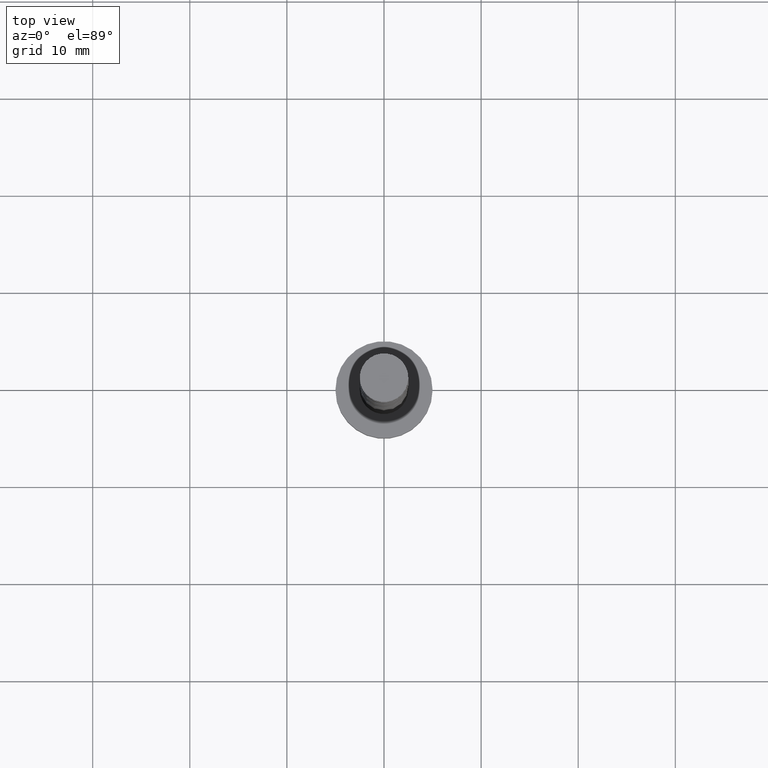
[diagram: clean part render]
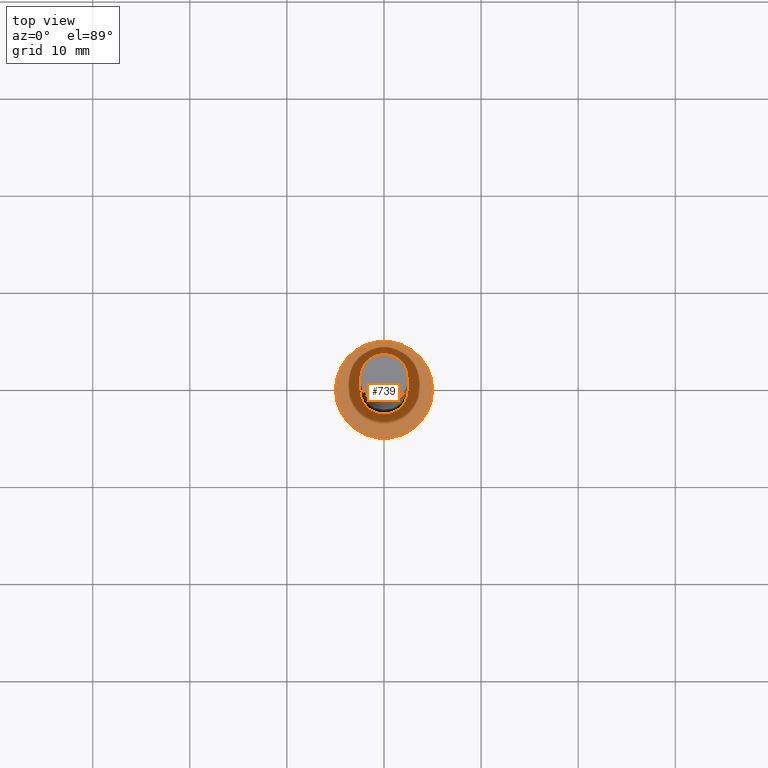
[diagram: same view with one face highlighted and labeled with its STEP entity id]
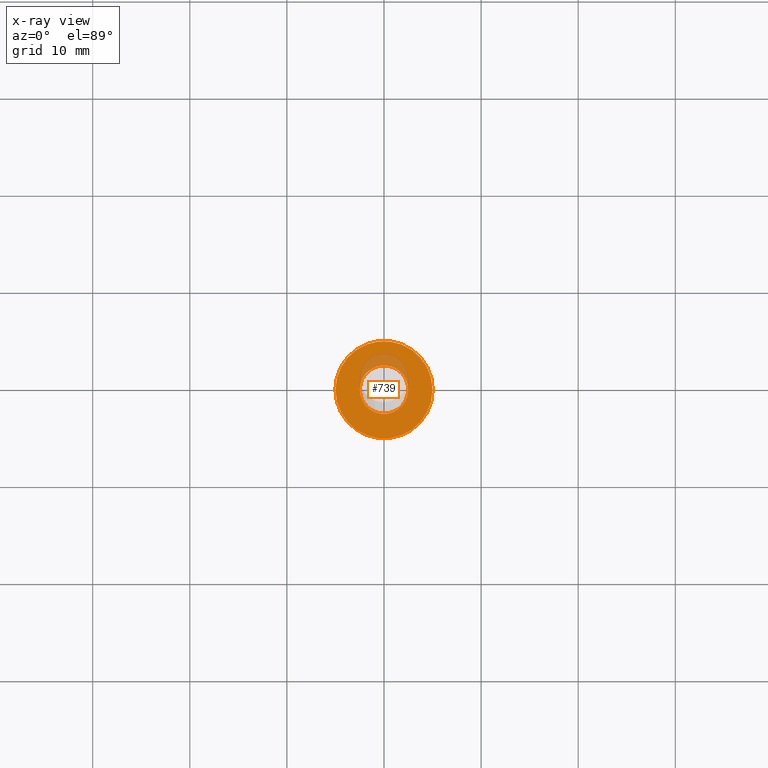
[diagram: x-ray of the same camera — body ghosted, the highlighted face saturated]
A machine part, top view. The second image highlights one B-rep face of the part: STEP entity #739.
The next image is the same camera in x-ray: the body ghosted, the highlighted face saturated — about 11% of this face is hidden behind the body in this view.
In plain terms, the highlighted planar face has unit normal (0, 0, 1).
Its self-contained STEP definition (entity closure, byte-faithful):
#47 = EDGE_LOOP ( 'NONE', ( #396, #781 ) ) ;
#58 = EDGE_CURVE ( 'NONE', #1349, #543, #638, .T. ) ;
#70 = EDGE_CURVE ( 'NONE', #1524, #1382, #835, .T. ) ;
#92 = DIRECTION ( 'NONE',  ( 1.000000000000000000, 0.000000000000000000, 0.000000000000000000 ) ) ;
#106 = AXIS2_PLACEMENT_3D ( 'NONE', #324, #1293, #1073 ) ;
#189 = CARTESIAN_POINT ( 'NONE',  ( 0.000000000000000000, 0.000000000000000000, 3.000000000000000000 ) ) ;
#218 = DIRECTION ( 'NONE',  ( 0.000000000000000000, 0.000000000000000000, 1.000000000000000000 ) ) ;
#324 = CARTESIAN_POINT ( 'NONE',  ( 0.000000000000000000, 0.000000000000000000, 3.000000000000000000 ) ) ;
#365 = ORIENTED_EDGE ( 'NONE', *, *, #70, .T. ) ;
#396 = ORIENTED_EDGE ( 'NONE', *, *, #58, .F. ) ;
#430 = AXIS2_PLACEMENT_3D ( 'NONE', #1308, #584, #92 ) ;
#462 = CARTESIAN_POINT ( 'NONE',  ( -5.000000000000000000, 0.000000000000000000, 3.000000000000000000 ) ) ;
#543 = VERTEX_POINT ( 'NONE', #1026 ) ;
#579 = DIRECTION ( 'NONE',  ( 1.000000000000000000, 0.000000000000000000, 0.000000000000000000 ) ) ;
#584 = DIRECTION ( 'NONE',  ( 0.000000000000000000, 0.000000000000000000, 1.000000000000000000 ) ) ;
#638 = CIRCLE ( 'NONE', #664, 2.500000000000000000 ) ;
#664 = AXIS2_PLACEMENT_3D ( 'NONE', #189, #1445, #805 ) ;
#707 = CARTESIAN_POINT ( 'NONE',  ( 0.000000000000000000, 0.000000000000000000, 3.000000000000000000 ) ) ;
#716 = EDGE_CURVE ( 'NONE', #1382, #1524, #1105, .T. ) ;
#739 = ADVANCED_FACE ( 'NONE', ( #1056, #937 ), #1193, .T. ) ;
#781 = ORIENTED_EDGE ( 'NONE', *, *, #802, .F. ) ;
#802 = EDGE_CURVE ( 'NONE', #543, #1349, #1082, .T. ) ;
#805 = DIRECTION ( 'NONE',  ( 1.000000000000000000, 0.000000000000000000, 0.000000000000000000 ) ) ;
#812 = AXIS2_PLACEMENT_3D ( 'NONE', #707, #942, #579 ) ;
#835 = CIRCLE ( 'NONE', #106, 5.000000000000000000 ) ;
#839 = DIRECTION ( 'NONE',  ( 1.000000000000000000, 0.000000000000000000, -0.000000000000000000 ) ) ;
#937 = FACE_OUTER_BOUND ( 'NONE', #1012, .T. ) ;
#942 = DIRECTION ( 'NONE',  ( 0.000000000000000000, 0.000000000000000000, 1.000000000000000000 ) ) ;
#962 = ORIENTED_EDGE ( 'NONE', *, *, #716, .T. ) ;
#1012 = EDGE_LOOP ( 'NONE', ( #962, #365 ) ) ;
#1026 = CARTESIAN_POINT ( 'NONE',  ( 2.500000000000000000, 3.061616997868383141E-16, 3.000000000000000000 ) ) ;
#1056 = FACE_BOUND ( 'NONE', #47, .T. ) ;
#1073 = DIRECTION ( 'NONE',  ( 1.000000000000000000, 0.000000000000000000, 0.000000000000000000 ) ) ;
#1082 = CIRCLE ( 'NONE', #812, 2.500000000000000000 ) ;
#1105 = CIRCLE ( 'NONE', #430, 5.000000000000000000 ) ;
#1167 = CARTESIAN_POINT ( 'NONE',  ( -2.500000000000000000, 0.000000000000000000, 3.000000000000000000 ) ) ;
#1193 = PLANE ( 'NONE',  #1519 ) ;
#1293 = DIRECTION ( 'NONE',  ( 0.000000000000000000, 0.000000000000000000, 1.000000000000000000 ) ) ;
#1308 = CARTESIAN_POINT ( 'NONE',  ( 0.000000000000000000, 0.000000000000000000, 3.000000000000000000 ) ) ;
#1318 = CARTESIAN_POINT ( 'NONE',  ( 0.000000000000000000, 0.000000000000000000, 3.000000000000000000 ) ) ;
#1349 = VERTEX_POINT ( 'NONE', #1167 ) ;
#1382 = VERTEX_POINT ( 'NONE', #462 ) ;
#1445 = DIRECTION ( 'NONE',  ( 0.000000000000000000, 0.000000000000000000, 1.000000000000000000 ) ) ;
#1471 = CARTESIAN_POINT ( 'NONE',  ( 5.000000000000000000, 6.123233995736766282E-16, 3.000000000000000000 ) ) ;
#1519 = AXIS2_PLACEMENT_3D ( 'NONE', #1318, #218, #839 ) ;
#1524 = VERTEX_POINT ( 'NONE', #1471 ) ;